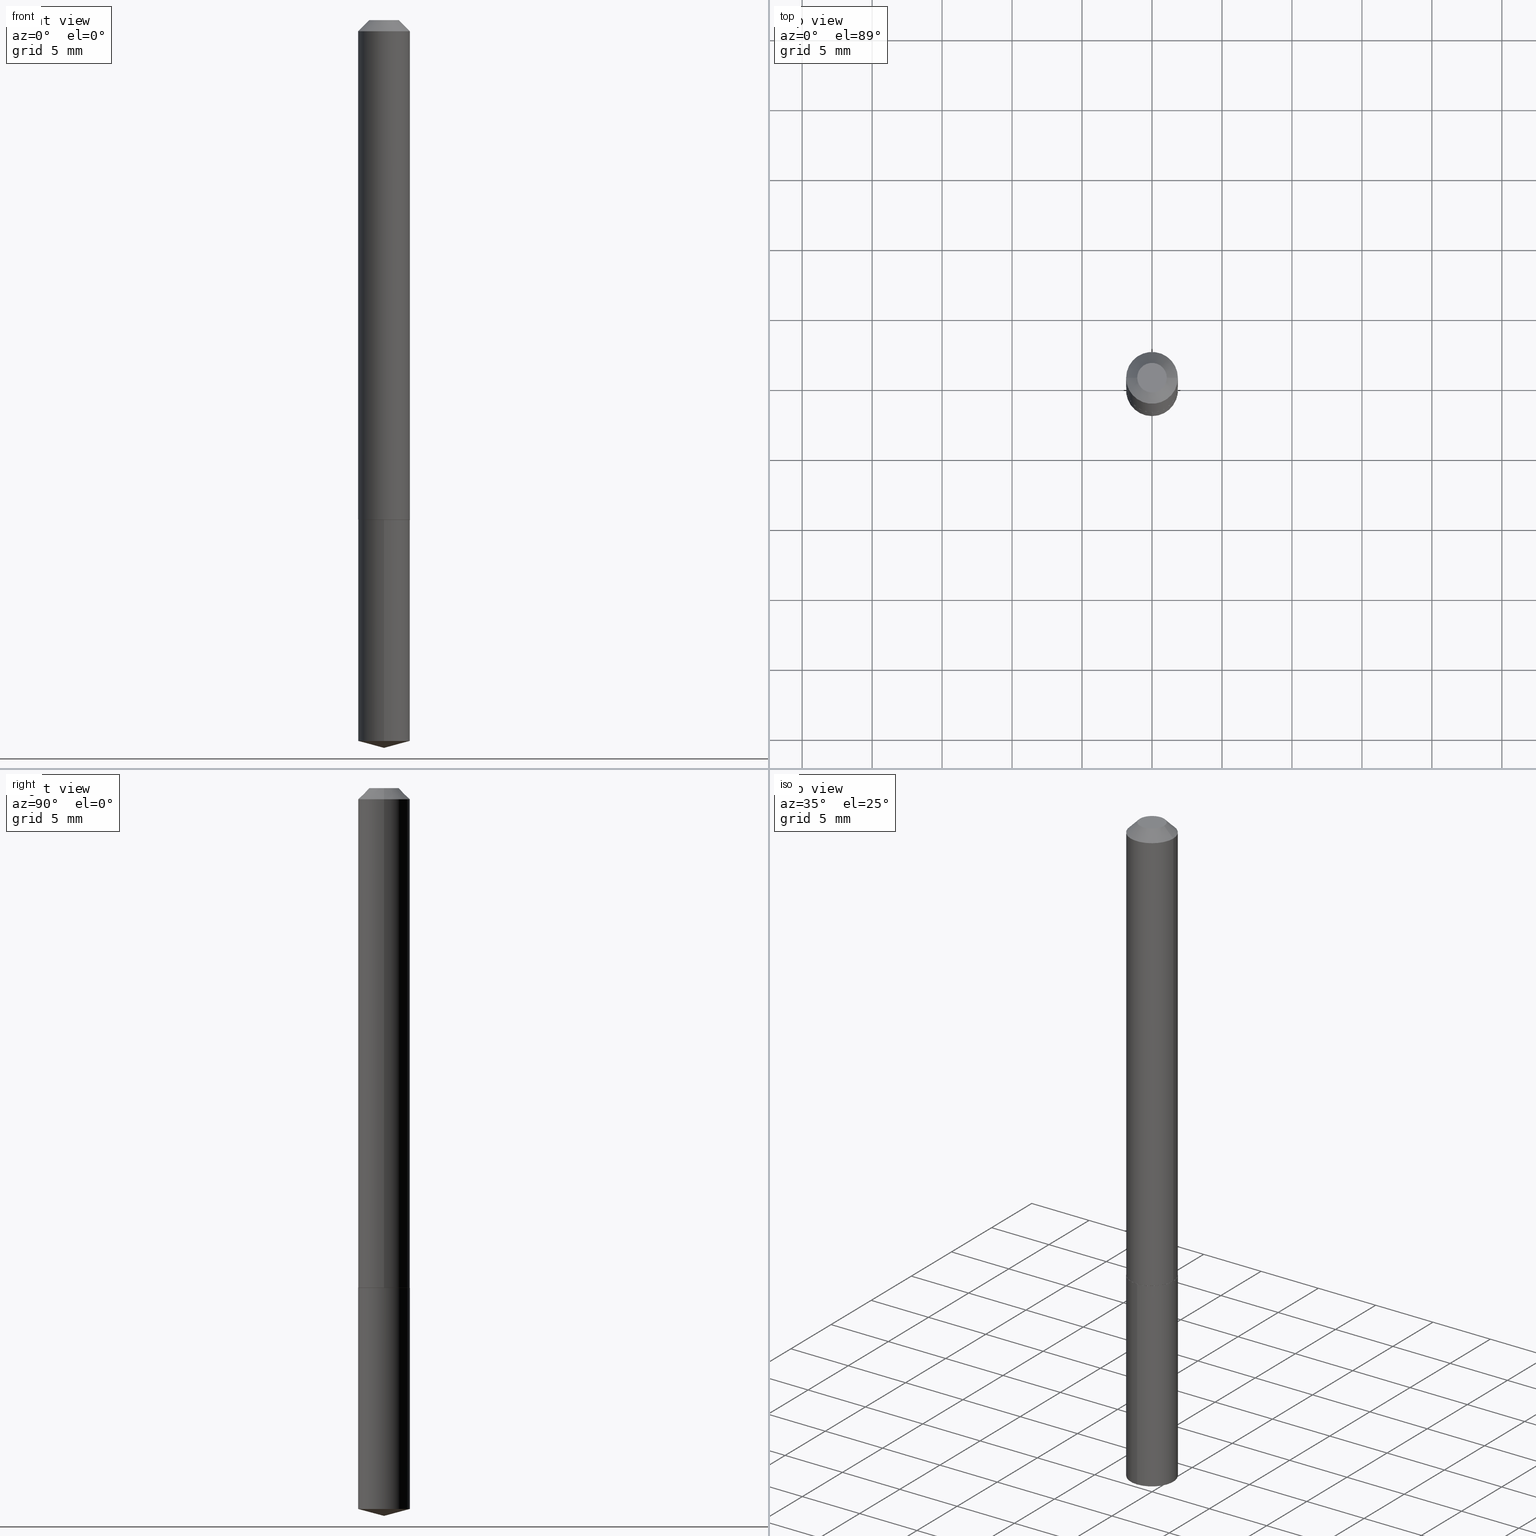
[diagram: canonical four-view strip — front | top / right | iso, engineering-drawing reading convention]
A machine part, canonical four-view strip (front | top / right | iso — engineering-drawing reading convention). The complete STEP part file that produces these views, byte-faithful:
ISO-10303-21;
HEADER;
FILE_DESCRIPTION (( 'STEP AP203' ),
    '1' );
FILE_NAME ('63003.STEP',
    '2024-04-23T07:18:19',
    ( '' ),
    ( '' ),
    'SwSTEP 2.0',
    'SolidWorks 2023',
    '' );
FILE_SCHEMA (( 'CONFIG_CONTROL_DESIGN' ));
ENDSEC;

DATA;
#1 = AXIS2_PLACEMENT_3D ( 'NONE', #50, #348, #54 ) ;
#2 = CARTESIAN_POINT ( 'NONE',  ( -0.04159999999999999809, 3.450456433111720626E-16, 4.837354856609806529E-19 ) ) ;
#3 = CC_DESIGN_PERSON_AND_ORGANIZATION_ASSIGNMENT ( #168, #229, ( #194 ) ) ;
#4 = FACE_OUTER_BOUND ( 'NONE', #170, .T. ) ;
#5 = COORDINATED_UNIVERSAL_TIME_OFFSET ( 5, 0, .BEHIND. ) ;
#6 = ORIENTED_EDGE ( 'NONE', *, *, #117, .F. ) ;
#7 = DIRECTION ( 'NONE',  ( 1.000000000000000000, -6.982962677686266711E-15, 4.876176775795936353E-29 ) ) ;
#8 = AXIS2_PLACEMENT_3D ( 'NONE', #275, #160, #10 ) ;
#9 = ORIENTED_EDGE ( 'NONE', *, *, #243, .T. ) ;
#10 = DIRECTION ( 'NONE',  ( 1.000000000000000000, 0.000000000000000000, 0.000000000000000000 ) ) ;
#11 = ADVANCED_FACE ( 'NONE', ( #246 ), #70, .T. ) ;
#12 = EDGE_LOOP ( 'NONE', ( #318, #86 ) ) ;
#13 = CARTESIAN_POINT ( 'NONE',  ( 5.176303830012825715E-16, 0.07284999999999293430, -2.027679901331393530 ) ) ;
#14 = EDGE_CURVE ( 'NONE', #55, #127, #272, .T. ) ;
#15 = ORIENTED_EDGE ( 'NONE', *, *, #277, .T. ) ;
#16 = AXIS2_PLACEMENT_3D ( 'NONE', #203, #48, #288 ) ;
#17 = EDGE_CURVE ( 'NONE', #204, #367, #329, .T. ) ;
#18 = CARTESIAN_POINT ( 'NONE',  ( -5.914800203170896741E-48, 8.444767105646489892E-34, 2.418677428316012991E-19 ) ) ;
#19 = VERTEX_POINT ( 'NONE', #193 ) ;
#20 = LINE ( 'NONE', #385, #76 ) ;
#21 = EDGE_LOOP ( 'NONE', ( #165, #41 ) ) ;
#22 = DIRECTION ( 'NONE',  ( 2.445607014426194751E-29, -3.491283416775625299E-15, -1.000000000000000000 ) ) ;
#23 = ORIENTED_EDGE ( 'NONE', *, *, #250, .F. ) ;
#24 = AXIS2_PLACEMENT_3D ( 'NONE', #52, #285, #320 ) ;
#25 = DIRECTION ( 'NONE',  ( -0.7071067811867527420, 7.493145998871095689E-15, 0.7071067811863422925 ) ) ;
#26 = SECURITY_CLASSIFICATION ( '', '', #198 ) ;
#27 = APPROVAL_DATE_TIME ( #388, #163 ) ;
#28 = CARTESIAN_POINT ( 'NONE',  ( 0.07235000000000024745, -5.412494371474644235E-15, -1.405499999999999972 ) ) ;
#29 = DIRECTION ( 'NONE',  ( 1.000000000000000000, -6.982962677686265922E-15, 0.000000000000000000 ) ) ;
#30 = CARTESIAN_POINT ( 'NONE',  ( -1.182960040634179348E-47, 1.688953421129297978E-33, 4.837354856632025983E-19 ) ) ;
#31 = EDGE_CURVE ( 'NONE', #127, #251, #166, .T. ) ;
#32 = AXIS2_PLACEMENT_3D ( 'NONE', #164, #262, #281 ) ;
#33 = DIRECTION ( 'NONE',  ( -2.445468806185136877E-29, 3.491481338843145188E-15, 1.000000000000000000 ) ) ;
#34 = DIRECTION ( 'NONE',  ( -0.7071067811865451302, 2.468850131082231817E-15, -0.7071067811865499042 ) ) ;
#35 = ADVANCED_FACE ( 'NONE', ( #231 ), #188, .T. ) ;
#36 = AXIS2_PLACEMENT_3D ( 'NONE', #380, #261, #199 ) ;
#37 = CARTESIAN_POINT ( 'NONE',  ( 7.642090019328602662E-31, -1.091087918388490267E-16, -0.03125000000000020817 ) ) ;
#38 = AXIS2_PLACEMENT_3D ( 'NONE', #37, #389, #361 ) ;
#39 = ORIENTED_EDGE ( 'NONE', *, *, #239, .T. ) ;
#40 =( LENGTH_UNIT ( ) NAMED_UNIT ( * ) SI_UNIT ( $, .METRE. ) );
#41 = ORIENTED_EDGE ( 'NONE', *, *, #59, .T. ) ;
#42 = VERTEX_POINT ( 'NONE', #137 ) ;
#43 = EDGE_LOOP ( 'NONE', ( #154, #132, #218, #100 ) ) ;
#44 = EDGE_CURVE ( 'NONE', #42, #127, #225, .T. ) ;
#45 = DIRECTION ( 'NONE',  ( -2.445607014426195312E-29, 3.491283416775625299E-15, 1.000000000000000000 ) ) ;
#46 = CONICAL_SURFACE ( 'NONE', #263, 0.07284999999999999809, 0.7853981633974449483 ) ;
#47 = AXIS2_PLACEMENT_3D ( 'NONE', #328, #390, #89 ) ;
#48 = DIRECTION ( 'NONE',  ( -2.445607014426195312E-29, 3.491283416775625299E-15, 1.000000000000000000 ) ) ;
#49 = CALENDAR_DATE ( 2024, 23, 4 ) ;
#50 = CARTESIAN_POINT ( 'NONE',  ( 3.437106407093210258E-29, -4.907277021744042169E-15, -1.405500000000000416 ) ) ;
#51 = PRODUCT_RELATED_PRODUCT_CATEGORY ( 'detail', '', ( #386 ) ) ;
#52 = CARTESIAN_POINT ( 'NONE',  ( -9.127728829719026318E-28, 1.303044694323734576E-13, 37.32287874015748486 ) ) ;
#53 = APPROVAL_ROLE ( '' ) ;
#54 = DIRECTION ( 'NONE',  ( -6.982962677686265922E-15, -1.000000000000000000, 3.749962928845934523E-15 ) ) ;
#55 = VERTEX_POINT ( 'NONE', #135 ) ;
#56 = LINE ( 'NONE', #371, #183 ) ;
#57 = EDGE_LOOP ( 'NONE', ( #102, #175, #302 ) ) ;
#58 = CALENDAR_DATE ( 2024, 23, 4 ) ;
#59 = EDGE_CURVE ( 'NONE', #19, #84, #118, .T. ) ;
#60 = DIRECTION ( 'NONE',  ( 6.863315791527700570E-15, 0.9659258262890704216, 0.2588190451025128569 ) ) ;
#61 = LINE ( 'NONE', #120, #362 ) ;
#62 = AXIS2_PLACEMENT_3D ( 'NONE', #240, #63, #150 ) ;
#63 = DIRECTION ( 'NONE',  ( -2.445607014426195312E-29, 3.491283416775625299E-15, 1.000000000000000000 ) ) ;
#64 = ADVANCED_FACE ( 'NONE', ( #342 ), #46, .T. ) ;
#65 = FACE_OUTER_BOUND ( 'NONE', #167, .T. ) ;
#66 = ORIENTED_EDGE ( 'NONE', *, *, #104, .F. ) ;
#67 = DIRECTION ( 'NONE',  ( -2.445468806185136597E-29, 3.491481338843145583E-15, 1.000000000000000000 ) ) ;
#68 = ORIENTED_EDGE ( 'NONE', *, *, #365, .F. ) ;
#69 = ADVANCED_FACE ( 'NONE', ( #141 ), #169, .F. ) ;
#70 = CYLINDRICAL_SURFACE ( 'NONE', #73, 0.07284999999999999809 ) ;
#71 = DIRECTION ( 'NONE',  ( 1.000000000000000000, -6.982962677686261977E-15, 0.000000000000000000 ) ) ;
#72 = PERSON_AND_ORGANIZATION ( #92, #357 ) ;
#73 = AXIS2_PLACEMENT_3D ( 'NONE', #189, #77, #190 ) ;
#74 = ORIENTED_EDGE ( 'NONE', *, *, #354, .T. ) ;
#75 =( CONVERSION_BASED_UNIT ( 'INCH', #313 ) LENGTH_UNIT ( ) NAMED_UNIT ( #307 ) );
#76 = VECTOR ( 'NONE', #356, 39.37007874015748143 ) ;
#77 = DIRECTION ( 'NONE',  ( -2.445607014426195312E-29, 3.491283416775625299E-15, 1.000000000000000000 ) ) ;
#78 = ORIENTED_EDGE ( 'NONE', *, *, #179, .F. ) ;
#79 = DIRECTION ( 'NONE',  ( -1.000000000000000000, 6.982962677686265922E-15, -4.876176775795935793E-29 ) ) ;
#80 = VECTOR ( 'NONE', #60, 39.37007874015748143 ) ;
#81 = DIRECTION ( 'NONE',  ( -6.982962677686265922E-15, -1.000000000000000000, 3.749962928845934523E-15 ) ) ;
#82 = EDGE_CURVE ( 'NONE', #367, #204, #93, .T. ) ;
#83 = CARTESIAN_POINT ( 'NONE',  ( 3.437106407093210258E-29, -4.907277021744042169E-15, -1.405500000000000416 ) ) ;
#84 = VERTEX_POINT ( 'NONE', #256 ) ;
#85 = CYLINDRICAL_SURFACE ( 'NONE', #16, 0.07284999999999999809 ) ;
#86 = ORIENTED_EDGE ( 'NONE', *, *, #368, .F. ) ;
#87 = AXIS2_PLACEMENT_3D ( 'NONE', #18, #377, #79 ) ;
#88 = APPROVAL_DATE_TIME ( #291, #230 ) ;
#89 = DIRECTION ( 'NONE',  ( -1.000000000000000000, 6.982962677686265922E-15, 0.000000000000000000 ) ) ;
#90 = VECTOR ( 'NONE', #34, 39.37007874015748143 ) ;
#91 = EDGE_CURVE ( 'NONE', #157, #42, #373, .T. ) ;
#92 = PERSON ( 'UNSPECIFIED', 'UNSPECIFIED', 'UNSPECIFIED', ('UNSPECIFIED'), ('UNSPECIFIED'), ('UNSPECIFIED') ) ;
#93 = CIRCLE ( 'NONE', #284, 0.07284999999999999809 ) ;
#94 = ADVANCED_FACE ( 'NONE', ( #383 ), #110, .F. ) ;
#95 = CARTESIAN_POINT ( 'NONE',  ( -5.087088310693949799E-16, -0.07285000000000708964, -2.027679901331393086 ) ) ;
#96 = CYLINDRICAL_SURFACE ( 'NONE', #299, 0.07285000000000008136 ) ;
#97 = AXIS2_PLACEMENT_3D ( 'NONE', #83, #22, #235 ) ;
#98 = DIRECTION ( 'NONE',  ( -2.445468806185136597E-29, 3.491481338843145583E-15, 1.000000000000000000 ) ) ;
#99 = CONICAL_SURFACE ( 'NONE', #47, 0.07284999999999999809, 0.7853981633974449483 ) ;
#100 = ORIENTED_EDGE ( 'NONE', *, *, #254, .F. ) ;
#101 =( NAMED_UNIT ( * ) PLANE_ANGLE_UNIT ( ) SI_UNIT ( $, .RADIAN. ) );
#102 = ORIENTED_EDGE ( 'NONE', *, *, #239, .F. ) ;
#103 = DATE_AND_TIME ( #366, #107 ) ;
#104 = EDGE_CURVE ( 'NONE', #367, #19, #113, .T. ) ;
#105 = ORIENTED_EDGE ( 'NONE', *, *, #254, .T. ) ;
#106 = CARTESIAN_POINT ( 'NONE',  ( 3.437106407093210258E-29, -4.907277021744041380E-15, -1.405499999999999972 ) ) ;
#107 = LOCAL_TIME ( 3, 18, 19.00000000000000000, #5 ) ;
#108 = ORIENTED_EDGE ( 'NONE', *, *, #243, .F. ) ;
#109 = DIRECTION ( 'NONE',  ( 2.445468806185136597E-29, -3.491481338843145583E-15, -1.000000000000000000 ) ) ;
#110 = PLANE ( 'NONE',  #87 ) ;
#111 = AXIS2_PLACEMENT_3D ( 'NONE', #312, #374, #185 ) ;
#112 = AXIS2_PLACEMENT_3D ( 'NONE', #106, #221, #71 ) ;
#113 = LINE ( 'NONE', #316, #298 ) ;
#114 = CARTESIAN_POINT ( 'NONE',  ( 3.437106407093210258E-29, -4.907277021744042169E-15, -1.405500000000000416 ) ) ;
#115 = MANIFOLD_SOLID_BREP ( 'Body-Move/Copy2[1]', #293 ) ;
#116 = DIRECTION ( 'NONE',  ( -1.000000000000000000, 6.982962677686265922E-15, 0.000000000000000000 ) ) ;
#117 = EDGE_CURVE ( 'NONE', #84, #19, #131, .T. ) ;
#118 = CIRCLE ( 'NONE', #1, 0.07284999999999999809 ) ;
#119 = AXIS2_PLACEMENT_3D ( 'NONE', #303, #98, #7 ) ;
#120 = CARTESIAN_POINT ( 'NONE',  ( 0.07285000000000008136, -5.087088310694450726E-16, 3.552294781167343726E-30 ) ) ;
#121 = CC_DESIGN_PERSON_AND_ORGANIZATION_ASSIGNMENT ( #72, #156, ( #142 ) ) ;
#122 = FACE_OUTER_BOUND ( 'NONE', #197, .T. ) ;
#123 = DIRECTION ( 'NONE',  ( -2.445468806185136597E-29, 3.491481338843145583E-15, 1.000000000000000000 ) ) ;
#124 = CIRCLE ( 'NONE', #252, 0.07284999999999999809 ) ;
#125 = CARTESIAN_POINT ( 'NONE',  ( 0.000000000000000000, 0.000000000000000000, 0.000000000000000000 ) ) ;
#126 = ORIENTED_EDGE ( 'NONE', *, *, #368, .T. ) ;
#127 = VERTEX_POINT ( 'NONE', #279 ) ;
#128 = FACE_OUTER_BOUND ( 'NONE', #309, .T. ) ;
#129 = CIRCLE ( 'NONE', #112, 0.07235000000000024745 ) ;
#130 = ADVANCED_FACE ( 'NONE', ( #233 ), #85, .T. ) ;
#131 = CIRCLE ( 'NONE', #355, 0.07284999999999999809 ) ;
#132 = ORIENTED_EDGE ( 'NONE', *, *, #365, .T. ) ;
#133 = AXIS2_PLACEMENT_3D ( 'NONE', #339, #67, #191 ) ;
#134 = CARTESIAN_POINT ( 'NONE',  ( 7.142962629955994878E-29, 3.997200136327581733E-16, -1.405499999999999972 ) ) ;
#135 = CARTESIAN_POINT ( 'NONE',  ( 0.07285000000000016462, -5.414240112144066527E-15, -1.405000000000000471 ) ) ;
#136 = ORIENTED_EDGE ( 'NONE', *, *, #59, .F. ) ;
#137 = CARTESIAN_POINT ( 'NONE',  ( -0.07235000000000024745, -4.390550125247497514E-15, -1.405499999999999972 ) ) ;
#138 = ORIENTED_EDGE ( 'NONE', *, *, #17, .F. ) ;
#139 = PERSON_AND_ORGANIZATION_ROLE ( 'classification_officer' ) ;
#140 = APPROVAL_PERSON_ORGANIZATION ( #350, #163, #287 ) ;
#141 = FACE_OUTER_BOUND ( 'NONE', #21, .T. ) ;
#142 = PRODUCT_DEFINITION ( 'UNKNOWN', '', #194, #153 ) ;
#143 = FACE_OUTER_BOUND ( 'NONE', #144, .T. ) ;
#144 = EDGE_LOOP ( 'NONE', ( #220, #126, #9, #258 ) ) ;
#145 = COORDINATED_UNIVERSAL_TIME_OFFSET ( 5, 0, .BEHIND. ) ;
#146 = CALENDAR_DATE ( 2024, 23, 4 ) ;
#147 = DIRECTION ( 'NONE',  ( -2.445468806185136597E-29, 3.491481338843145583E-15, 1.000000000000000000 ) ) ;
#148 = CARTESIAN_POINT ( 'NONE',  ( 0.07285000000000016462, -5.414240112144066527E-15, -1.405000000000000471 ) ) ;
#149 = CC_DESIGN_DATE_AND_TIME_ASSIGNMENT ( #234, #172, ( #26 ) ) ;
#150 = DIRECTION ( 'NONE',  ( -6.982962677686266711E-15, -1.000000000000000000, 3.510303681827574563E-15 ) ) ;
#151 = LINE ( 'NONE', #245, #210 ) ;
#152 = APPROVAL_PERSON_ORGANIZATION ( #372, #264, #300 ) ;
#153 = DESIGN_CONTEXT ( 'detailed design', #315, 'design' ) ;
#154 = ORIENTED_EDGE ( 'NONE', *, *, #333, .F. ) ;
#155 = AXIS2_PLACEMENT_3D ( 'NONE', #324, #196, #375 ) ;
#156 = PERSON_AND_ORGANIZATION_ROLE ( 'creator' ) ;
#157 = VERTEX_POINT ( 'NONE', #28 ) ;
#158 = CIRCLE ( 'NONE', #228, 0.04159999999999999809 ) ;
#159 = ORIENTED_EDGE ( 'NONE', *, *, #208, .F. ) ;
#160 = DIRECTION ( 'NONE',  ( 0.000000000000000000, 0.000000000000000000, 1.000000000000000000 ) ) ;
#161 = PLANE ( 'NONE',  #182 ) ;
#162 = LOCAL_TIME ( 3, 18, 19.00000000000000000, #178 ) ;
#163 = APPROVAL ( #321, 'UNSPECIFIED' ) ;
#164 = CARTESIAN_POINT ( 'NONE',  ( 3.435883672690118017E-29, -4.905531281074621455E-15, -1.405000000000000471 ) ) ;
#165 = ORIENTED_EDGE ( 'NONE', *, *, #117, .T. ) ;
#166 = LINE ( 'NONE', #224, #379 ) ;
#167 = EDGE_LOOP ( 'NONE', ( #247, #15, #353, #159 ) ) ;
#168 = PERSON_AND_ORGANIZATION ( #92, #357 ) ;
#169 = PLANE ( 'NONE',  #97 ) ;
#170 = EDGE_LOOP ( 'NONE', ( #68, #23, #105, #335 ) ) ;
#171 = ADVANCED_FACE ( 'NONE', ( #143 ), #358, .T. ) ;
#172 = DATE_TIME_ROLE ( 'classification_date' ) ;
#173 = CC_DESIGN_APPROVAL ( #163, ( #26 ) ) ;
#174 = CARTESIAN_POINT ( 'NONE',  ( 4.958713938024262503E-29, -7.079483393513429286E-15, -2.027679901331393086 ) ) ;
#175 = ORIENTED_EDGE ( 'NONE', *, *, #179, .T. ) ;
#176 = DIRECTION ( 'NONE',  ( 1.000000000000000000, -6.982962677686265922E-15, 4.876129988516971064E-29 ) ) ;
#177 = ORIENTED_EDGE ( 'NONE', *, *, #333, .T. ) ;
#178 = COORDINATED_UNIVERSAL_TIME_OFFSET ( 5, 0, .BEHIND. ) ;
#179 = EDGE_CURVE ( 'NONE', #278, #204, #20, .T. ) ;
#180 = DIRECTION ( 'NONE',  ( -2.445468806185136597E-29, 3.491481338843145583E-15, 1.000000000000000000 ) ) ;
#181 = DIRECTION ( 'NONE',  ( 1.000000000000000000, -6.982962677686266711E-15, 4.876176775795936353E-29 ) ) ;
#182 = AXIS2_PLACEMENT_3D ( 'NONE', #134, #253, #295 ) ;
#183 = VECTOR ( 'NONE', #271, 39.37007874015748143 ) ;
#184 = ADVANCED_FACE ( 'NONE', ( #192 ), #161, .F. ) ;
#185 = DIRECTION ( 'NONE',  ( 1.000000000000000000, -6.982962677686262766E-15, 0.000000000000000000 ) ) ;
#186 = APPROVAL_DATE_TIME ( #103, #264 ) ;
#187 = ORIENTED_EDGE ( 'NONE', *, *, #354, .F. ) ;
#188 = CONICAL_SURFACE ( 'NONE', #24, 146.9311341562577695, 1.308996938995751869 ) ;
#189 = CARTESIAN_POINT ( 'NONE',  ( 3.437106407093210258E-29, -4.907277021744042169E-15, -1.405500000000000416 ) ) ;
#190 = DIRECTION ( 'NONE',  ( -6.982962677686265922E-15, -1.000000000000000000, 3.749962928845934523E-15 ) ) ;
#191 = DIRECTION ( 'NONE',  ( 1.000000000000000000, -6.982962677686262766E-15, 0.000000000000000000 ) ) ;
#192 = FACE_OUTER_BOUND ( 'NONE', #12, .T. ) ;
#193 = CARTESIAN_POINT ( 'NONE',  ( 5.176303830012825715E-16, 0.07284999999999508535, -1.405500000000000638 ) ) ;
#194 = PRODUCT_DEFINITION_FORMATION_WITH_SPECIFIED_SOURCE ( 'ANY', '', #386, .NOT_KNOWN. ) ;
#195 = DATE_AND_TIME ( #319, #273 ) ;
#196 = DIRECTION ( 'NONE',  ( -2.445607014426195312E-29, 3.491283416775625299E-15, 1.000000000000000000 ) ) ;
#197 = EDGE_LOOP ( 'NONE', ( #78, #39, #138 ) ) ;
#198 = SECURITY_CLASSIFICATION_LEVEL ( 'unclassified' ) ;
#199 = DIRECTION ( 'NONE',  ( 1.000000000000000000, -6.982962677686261977E-15, 0.000000000000000000 ) ) ;
#200 = EDGE_CURVE ( 'NONE', #55, #227, #61, .T. ) ;
#201 = ORIENTED_EDGE ( 'NONE', *, *, #31, .T. ) ;
#202 = DATE_TIME_ROLE ( 'creation_date' ) ;
#203 = CARTESIAN_POINT ( 'NONE',  ( 3.437106407093210258E-29, -4.907277021744042169E-15, -1.405500000000000416 ) ) ;
#204 = VERTEX_POINT ( 'NONE', #95 ) ;
#205 = COORDINATED_UNIVERSAL_TIME_OFFSET ( 5, 0, .BEHIND. ) ;
#206 = VECTOR ( 'NONE', #331, 39.37007874015748143 ) ;
#207 = DIRECTION ( 'NONE',  ( -2.445607014426195312E-29, 3.491283416775625299E-15, 1.000000000000000000 ) ) ;
#208 = EDGE_CURVE ( 'NONE', #251, #227, #124, .T. ) ;
#209 = CARTESIAN_POINT ( 'NONE',  ( 0.04159999999999999809, -4.471463938419002611E-16, 4.837354856657811296E-19 ) ) ;
#210 = VECTOR ( 'NONE', #207, 39.37007874015748143 ) ;
#211 = CARTESIAN_POINT ( 'NONE',  ( 0.07284999999999999809, -6.178176229082934830E-16, -0.03125000000000020817 ) ) ;
#212 = DIRECTION ( 'NONE',  ( -2.445468806185136597E-29, 3.491481338843145583E-15, 1.000000000000000000 ) ) ;
#213 = CC_DESIGN_PERSON_AND_ORGANIZATION_ASSIGNMENT ( #232, #139, ( #26 ) ) ;
#214 = CLOSED_SHELL ( 'NONE', ( #64, #376, #382, #184, #171, #344, #311, #94 ) ) ;
#215 = CONICAL_SURFACE ( 'NONE', #133, 0.07285000000000016462, 0.7853981633977384913 ) ;
#216 = ORIENTED_EDGE ( 'NONE', *, *, #14, .F. ) ;
#217 = ORIENTED_EDGE ( 'NONE', *, *, #82, .T. ) ;
#218 = ORIENTED_EDGE ( 'NONE', *, *, #301, .T. ) ;
#219 = MECHANICAL_CONTEXT ( 'NONE', #226, 'mechanical' ) ;
#220 = ORIENTED_EDGE ( 'NONE', *, *, #44, .F. ) ;
#221 = DIRECTION ( 'NONE',  ( -2.445468806185136597E-29, 3.491481338843145583E-15, 1.000000000000000000 ) ) ;
#222 = ORIENTED_EDGE ( 'NONE', *, *, #44, .T. ) ;
#223 = CC_DESIGN_DATE_AND_TIME_ASSIGNMENT ( #195, #202, ( #142 ) ) ;
#224 = CARTESIAN_POINT ( 'NONE',  ( -0.07285000000000008136, 5.176303830012335635E-16, -3.583444213250702632E-30 ) ) ;
#225 = LINE ( 'NONE', #351, #241 ) ;
#226 = APPLICATION_CONTEXT ( 'configuration controlled 3d designs of mechanical parts and assemblies' ) ;
#227 = VERTEX_POINT ( 'NONE', #211 ) ;
#228 = AXIS2_PLACEMENT_3D ( 'NONE', #268, #123, #364 ) ;
#229 = PERSON_AND_ORGANIZATION_ROLE ( 'creator' ) ;
#230 = APPROVAL ( #260, 'UNSPECIFIED' ) ;
#231 = FACE_OUTER_BOUND ( 'NONE', #57, .T. ) ;
#232 = PERSON_AND_ORGANIZATION ( #92, #357 ) ;
#233 = FACE_OUTER_BOUND ( 'NONE', #349, .T. ) ;
#234 = DATE_AND_TIME ( #49, #265 ) ;
#235 = DIRECTION ( 'NONE',  ( 6.982962677686265922E-15, 1.000000000000000000, -3.491283416775625299E-15 ) ) ;
#236 = ORIENTED_EDGE ( 'NONE', *, *, #250, .T. ) ;
#237 = CIRCLE ( 'NONE', #294, 0.07285000000000016462 ) ;
#238 = COORDINATED_UNIVERSAL_TIME_OFFSET ( 5, 0, .BEHIND. ) ;
#239 = EDGE_CURVE ( 'NONE', #278, #367, #327, .T. ) ;
#240 = CARTESIAN_POINT ( 'NONE',  ( -9.127728829719026318E-28, 1.303044694323734576E-13, 37.32287874015748486 ) ) ;
#241 = VECTOR ( 'NONE', #25, 39.37007874015748143 ) ;
#242 =( GEOMETRIC_REPRESENTATION_CONTEXT ( 3 ) GLOBAL_UNCERTAINTY_ASSIGNED_CONTEXT ( ( #259 ) ) GLOBAL_UNIT_ASSIGNED_CONTEXT ( ( #75, #101, #336 ) ) REPRESENTATION_CONTEXT ( 'NONE', 'WORKASPACE' ) );
#243 = EDGE_CURVE ( 'NONE', #157, #55, #292, .T. ) ;
#244 = CARTESIAN_POINT ( 'NONE',  ( -0.07284999999999999809, 3.996000392305954789E-16, -0.03125000000000020817 ) ) ;
#245 = CARTESIAN_POINT ( 'NONE',  ( -5.087088310694100669E-16, -0.07285000000000491083, -1.405499999999999972 ) ) ;
#246 = FACE_OUTER_BOUND ( 'NONE', #334, .T. ) ;
#247 = ORIENTED_EDGE ( 'NONE', *, *, #31, .F. ) ;
#248 = APPLICATION_PROTOCOL_DEFINITION ( 'international standard', 'config_control_design', 1994, #226 ) ;
#249 = APPLICATION_PROTOCOL_DEFINITION ( 'international standard', 'config_control_design', 1994, #315 ) ;
#250 = EDGE_CURVE ( 'NONE', #255, #290, #381, .T. ) ;
#251 = VERTEX_POINT ( 'NONE', #267 ) ;
#252 = AXIS2_PLACEMENT_3D ( 'NONE', #289, #297, #29 ) ;
#253 = DIRECTION ( 'NONE',  ( -2.438088387897960049E-29, 3.491481338843145188E-15, 1.000000000000000000 ) ) ;
#254 = EDGE_CURVE ( 'NONE', #255, #251, #360, .T. ) ;
#255 = VERTEX_POINT ( 'NONE', #2 ) ;
#256 = CARTESIAN_POINT ( 'NONE',  ( -5.087088310694100669E-16, -0.07285000000000491083, -1.405499999999999972 ) ) ;
#257 = DIRECTION ( 'NONE',  ( -6.982962677686265922E-15, -1.000000000000000000, 3.749962928845934523E-15 ) ) ;
#258 = ORIENTED_EDGE ( 'NONE', *, *, #277, .F. ) ;
#259 = UNCERTAINTY_MEASURE_WITH_UNIT (LENGTH_MEASURE( 1.000000000000000082E-05 ), #75, 'distance_accuracy_value', 'NONE');
#260 = APPROVAL_STATUS ( 'not_yet_approved' ) ;
#261 = DIRECTION ( 'NONE',  ( -2.445468806185136597E-29, 3.491481338843145583E-15, 1.000000000000000000 ) ) ;
#262 = DIRECTION ( 'NONE',  ( -2.445468806185136597E-29, 3.491481338843145583E-15, 1.000000000000000000 ) ) ;
#263 = AXIS2_PLACEMENT_3D ( 'NONE', #314, #109, #116 ) ;
#264 = APPROVAL ( #363, 'UNSPECIFIED' ) ;
#265 = LOCAL_TIME ( 3, 18, 19.00000000000000000, #145 ) ;
#266 = DIRECTION ( 'NONE',  ( 1.000000000000000000, -6.982962677686262766E-15, 0.000000000000000000 ) ) ;
#267 = CARTESIAN_POINT ( 'NONE',  ( -0.07284999999999999809, -1.989689653455500531E-15, -0.03125000000000020817 ) ) ;
#268 = CARTESIAN_POINT ( 'NONE',  ( -1.182960040634179348E-47, 1.688953421129297978E-33, 4.837354856632025983E-19 ) ) ;
#269 = AXIS2_PLACEMENT_3D ( 'NONE', #30, #180, #176 ) ;
#270 = CARTESIAN_POINT ( 'NONE',  ( 3.435883672690118017E-29, -4.905531281074621455E-15, -1.405000000000000471 ) ) ;
#271 = DIRECTION ( 'NONE',  ( 0.7071067811865451302, -7.319954787623248157E-15, -0.7071067811865499042 ) ) ;
#272 = CIRCLE ( 'NONE', #111, 0.07285000000000016462 ) ;
#273 = LOCAL_TIME ( 3, 18, 19.00000000000000000, #238 ) ;
#274 = ORIENTED_EDGE ( 'NONE', *, *, #91, .T. ) ;
#275 = CARTESIAN_POINT ( 'NONE',  ( 0.000000000000000000, 0.000000000000000000, 0.000000000000000000 ) ) ;
#276 = PERSON_AND_ORGANIZATION_ROLE ( 'design_owner' ) ;
#277 = EDGE_CURVE ( 'NONE', #127, #55, #237, .T. ) ;
#278 = VERTEX_POINT ( 'NONE', #332 ) ;
#279 = CARTESIAN_POINT ( 'NONE',  ( -0.07285000000000016462, -4.387900898073387102E-15, -1.405000000000000471 ) ) ;
#280 = CIRCLE ( 'NONE', #38, 0.07284999999999999809 ) ;
#281 = DIRECTION ( 'NONE',  ( 1.000000000000000000, -6.982962677686262766E-15, 0.000000000000000000 ) ) ;
#282 = DIRECTION ( 'NONE',  ( -2.445468806185136877E-29, 3.491481338843145188E-15, 1.000000000000000000 ) ) ;
#283 = PERSON_AND_ORGANIZATION_ROLE ( 'design_supplier' ) ;
#284 = AXIS2_PLACEMENT_3D ( 'NONE', #174, #45, #257 ) ;
#285 = DIRECTION ( 'NONE',  ( -2.445607014426195312E-29, 3.491283416775625299E-15, 1.000000000000000000 ) ) ;
#286 = LOCAL_TIME ( 3, 18, 19.00000000000000000, #205 ) ;
#287 = APPROVAL_ROLE ( '' ) ;
#288 = DIRECTION ( 'NONE',  ( -6.982962677686265922E-15, -1.000000000000000000, 3.749962928845934523E-15 ) ) ;
#289 = CARTESIAN_POINT ( 'NONE',  ( 7.642090019328602662E-31, -1.091087918388490267E-16, -0.03125000000000020817 ) ) ;
#290 = VERTEX_POINT ( 'NONE', #209 ) ;
#291 = DATE_AND_TIME ( #58, #162 ) ;
#292 = LINE ( 'NONE', #148, #206 ) ;
#293 = CLOSED_SHELL ( 'NONE', ( #11, #325, #35, #130, #69 ) ) ;
#294 = AXIS2_PLACEMENT_3D ( 'NONE', #270, #147, #266 ) ;
#295 = DIRECTION ( 'NONE',  ( 1.000000000000000000, -6.982962677686265922E-15, 4.876176775795935793E-29 ) ) ;
#296 = CARTESIAN_POINT ( 'NONE',  ( 5.006650086649232501E-29, -7.147355410823060670E-15, -2.047200000000000131 ) ) ;
#297 = DIRECTION ( 'NONE',  ( -2.445468806185136597E-29, 3.491481338843145583E-15, 1.000000000000000000 ) ) ;
#298 = VECTOR ( 'NONE', #322, 39.37007874015748143 ) ;
#299 = AXIS2_PLACEMENT_3D ( 'NONE', #125, #212, #181 ) ;
#300 = APPROVAL_ROLE ( '' ) ;
#301 = EDGE_CURVE ( 'NONE', #227, #251, #280, .T. ) ;
#302 = ORIENTED_EDGE ( 'NONE', *, *, #82, .F. ) ;
#303 = CARTESIAN_POINT ( 'NONE',  ( 0.000000000000000000, 0.000000000000000000, 0.000000000000000000 ) ) ;
#304 = ORIENTED_EDGE ( 'NONE', *, *, #104, .T. ) ;
#305 = EDGE_LOOP ( 'NONE', ( #384, #201, #343, #369 ) ) ;
#306 = CYLINDRICAL_SURFACE ( 'NONE', #119, 0.07285000000000008136 ) ;
#307 = DIMENSIONAL_EXPONENTS ( 1.000000000000000000, 0.000000000000000000, 0.000000000000000000, 0.000000000000000000, 0.000000000000000000, 0.000000000000000000, 0.000000000000000000 ) ;
#308 = CC_DESIGN_APPROVAL ( #264, ( #142 ) ) ;
#309 = EDGE_LOOP ( 'NONE', ( #274, #222, #216, #108 ) ) ;
#310 = PERSON_AND_ORGANIZATION ( #92, #357 ) ;
#311 = ADVANCED_FACE ( 'NONE', ( #4 ), #99, .T. ) ;
#312 = CARTESIAN_POINT ( 'NONE',  ( 3.435883672690118017E-29, -4.905531281074621455E-15, -1.405000000000000471 ) ) ;
#313 = LENGTH_MEASURE_WITH_UNIT ( LENGTH_MEASURE( 0.02539999999999999897 ), #40 );
#314 = CARTESIAN_POINT ( 'NONE',  ( 7.642090019328602662E-31, -1.091087918388490267E-16, -0.03125000000000020817 ) ) ;
#315 = APPLICATION_CONTEXT ( 'configuration controlled 3d designs of mechanical parts and assemblies' ) ;
#316 = CARTESIAN_POINT ( 'NONE',  ( 5.176303830012672873E-16, 0.07284999999999508535, -1.405500000000000638 ) ) ;
#317 = CONICAL_SURFACE ( 'NONE', #62, 146.9311341562577695, 1.308996938995751869 ) ;
#318 = ORIENTED_EDGE ( 'NONE', *, *, #91, .F. ) ;
#319 = CALENDAR_DATE ( 2024, 23, 4 ) ;
#320 = DIRECTION ( 'NONE',  ( -6.982962677686266711E-15, -1.000000000000000000, 3.510303681827574563E-15 ) ) ;
#321 = APPROVAL_STATUS ( 'not_yet_approved' ) ;
#322 = DIRECTION ( 'NONE',  ( -2.445607014426195312E-29, 3.491283416775625299E-15, 1.000000000000000000 ) ) ;
#323 = PRODUCT_DEFINITION_SHAPE ( 'NONE', 'NONE',  #142 ) ;
#324 = CARTESIAN_POINT ( 'NONE',  ( 4.958713938024262503E-29, -7.079483393513429286E-15, -2.027679901331393086 ) ) ;
#325 = ADVANCED_FACE ( 'NONE', ( #122 ), #317, .T. ) ;
#326 = PERSON_AND_ORGANIZATION ( #92, #357 ) ;
#327 = LINE ( 'NONE', #296, #80 ) ;
#328 = CARTESIAN_POINT ( 'NONE',  ( 7.642090019328602662E-31, -1.091087918388490267E-16, -0.03125000000000020817 ) ) ;
#329 = CIRCLE ( 'NONE', #155, 0.07284999999999999809 ) ;
#330 = CC_DESIGN_SECURITY_CLASSIFICATION ( #26, ( #194 ) ) ;
#331 = DIRECTION ( 'NONE',  ( 0.7071067811867527420, -2.468850131084406312E-15, 0.7071067811863422925 ) ) ;
#332 = CARTESIAN_POINT ( 'NONE',  ( 5.006646679933307824E-29, -7.147355410823060670E-15, -2.047200000000000131 ) ) ;
#333 = EDGE_CURVE ( 'NONE', #290, #255, #158, .T. ) ;
#334 = EDGE_LOOP ( 'NONE', ( #338, #304, #6, #187 ) ) ;
#335 = ORIENTED_EDGE ( 'NONE', *, *, #208, .T. ) ;
#336 =( NAMED_UNIT ( * ) SI_UNIT ( $, .STERADIAN. ) SOLID_ANGLE_UNIT ( ) );
#337 = CC_DESIGN_PERSON_AND_ORGANIZATION_ASSIGNMENT ( #310, #276, ( #386 ) ) ;
#338 = ORIENTED_EDGE ( 'NONE', *, *, #17, .T. ) ;
#339 = CARTESIAN_POINT ( 'NONE',  ( 3.435883672690118017E-29, -4.905531281074621455E-15, -1.405000000000000471 ) ) ;
#340 = APPROVAL_PERSON_ORGANIZATION ( #326, #230, #53 ) ;
#341 = FACE_OUTER_BOUND ( 'NONE', #305, .T. ) ;
#342 = FACE_OUTER_BOUND ( 'NONE', #43, .T. ) ;
#343 = ORIENTED_EDGE ( 'NONE', *, *, #301, .F. ) ;
#344 = ADVANCED_FACE ( 'NONE', ( #65 ), #96, .T. ) ;
#345 = PERSON_AND_ORGANIZATION ( #92, #357 ) ;
#346 = DIRECTION ( 'NONE',  ( -2.445607014426195312E-29, 3.491283416775625299E-15, 1.000000000000000000 ) ) ;
#347 = ADVANCED_BREP_SHAPE_REPRESENTATION ( '63003', ( #115, #370, #8 ), #242 ) ;
#348 = DIRECTION ( 'NONE',  ( -2.445607014426195312E-29, 3.491283416775625299E-15, 1.000000000000000000 ) ) ;
#349 = EDGE_LOOP ( 'NONE', ( #66, #217, #74, #136 ) ) ;
#350 = PERSON_AND_ORGANIZATION ( #92, #357 ) ;
#351 = CARTESIAN_POINT ( 'NONE',  ( -0.07285000000000016462, -4.387900898073387102E-15, -1.405000000000000471 ) ) ;
#352 = CC_DESIGN_PERSON_AND_ORGANIZATION_ASSIGNMENT ( #345, #283, ( #194 ) ) ;
#353 = ORIENTED_EDGE ( 'NONE', *, *, #200, .T. ) ;
#354 = EDGE_CURVE ( 'NONE', #204, #84, #151, .T. ) ;
#355 = AXIS2_PLACEMENT_3D ( 'NONE', #114, #346, #81 ) ;
#356 = DIRECTION ( 'NONE',  ( -6.745023994389846233E-15, -0.9659258262890685343, 0.2588190451025196293 ) ) ;
#357 = ORGANIZATION ( 'UNSPECIFIED', 'UNSPECIFIED', '' ) ;
#358 = CONICAL_SURFACE ( 'NONE', #32, 0.07285000000000016462, 0.7853981633977384913 ) ;
#359 = SHAPE_DEFINITION_REPRESENTATION ( #323, #347 ) ;
#360 = LINE ( 'NONE', #244, #90 ) ;
#361 = DIRECTION ( 'NONE',  ( 1.000000000000000000, -6.982962677686265922E-15, 0.000000000000000000 ) ) ;
#362 = VECTOR ( 'NONE', #33, 39.37007874015748143 ) ;
#363 = APPROVAL_STATUS ( 'not_yet_approved' ) ;
#364 = DIRECTION ( 'NONE',  ( 1.000000000000000000, -6.982962677686265922E-15, 4.876129988516971064E-29 ) ) ;
#365 = EDGE_CURVE ( 'NONE', #290, #227, #56, .T. ) ;
#366 = CALENDAR_DATE ( 2024, 23, 4 ) ;
#367 = VERTEX_POINT ( 'NONE', #13 ) ;
#368 = EDGE_CURVE ( 'NONE', #42, #157, #129, .T. ) ;
#369 = ORIENTED_EDGE ( 'NONE', *, *, #200, .F. ) ;
#370 = MANIFOLD_SOLID_BREP ( 'Body-Move/Copy2[2]', #214 ) ;
#371 = CARTESIAN_POINT ( 'NONE',  ( 0.07284999999999999809, -6.088960709765050907E-16, -0.03125000000000020817 ) ) ;
#372 = PERSON_AND_ORGANIZATION ( #92, #357 ) ;
#373 = CIRCLE ( 'NONE', #36, 0.07235000000000024745 ) ;
#374 = DIRECTION ( 'NONE',  ( -2.445468806185136597E-29, 3.491481338843145583E-15, 1.000000000000000000 ) ) ;
#375 = DIRECTION ( 'NONE',  ( -6.982962677686265922E-15, -1.000000000000000000, 3.749962928845934523E-15 ) ) ;
#376 = ADVANCED_FACE ( 'NONE', ( #341 ), #306, .T. ) ;
#377 = DIRECTION ( 'NONE',  ( 2.438088387897960049E-29, -3.491481338843145188E-15, -1.000000000000000000 ) ) ;
#378 = EDGE_LOOP ( 'NONE', ( #236, #177 ) ) ;
#379 = VECTOR ( 'NONE', #282, 39.37007874015748143 ) ;
#380 = CARTESIAN_POINT ( 'NONE',  ( 3.437106407093210258E-29, -4.907277021744041380E-15, -1.405499999999999972 ) ) ;
#381 = CIRCLE ( 'NONE', #269, 0.04159999999999999809 ) ;
#382 = ADVANCED_FACE ( 'NONE', ( #128 ), #215, .T. ) ;
#383 = FACE_OUTER_BOUND ( 'NONE', #378, .T. ) ;
#384 = ORIENTED_EDGE ( 'NONE', *, *, #14, .T. ) ;
#385 = CARTESIAN_POINT ( 'NONE',  ( 5.006258176567691779E-29, -7.147911769754860192E-15, -2.047200000000000131 ) ) ;
#386 = PRODUCT ( '63003', '63003', '', ( #219 ) ) ;
#387 = CC_DESIGN_APPROVAL ( #230, ( #194 ) ) ;
#388 = DATE_AND_TIME ( #146, #286 ) ;
#389 = DIRECTION ( 'NONE',  ( -2.445468806185136597E-29, 3.491481338843145583E-15, 1.000000000000000000 ) ) ;
#390 = DIRECTION ( 'NONE',  ( 2.445468806185136597E-29, -3.491481338843145583E-15, -1.000000000000000000 ) ) ;
ENDSEC;
END-ISO-10303-21;
